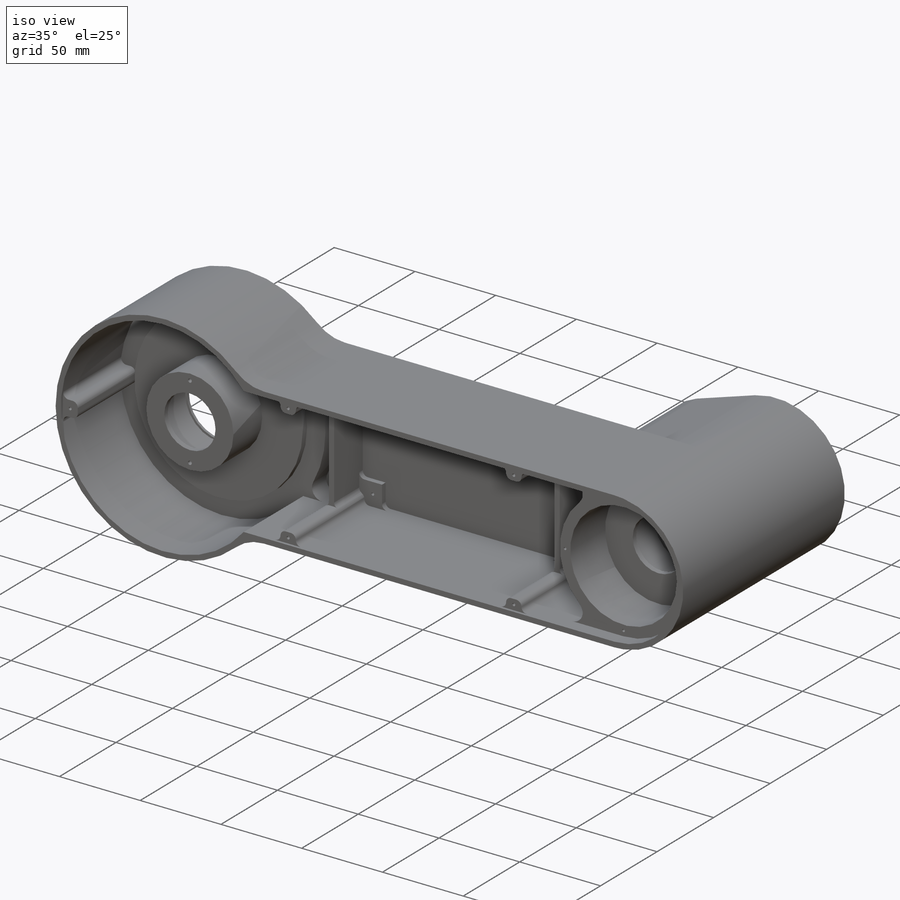
[diagram: iso view]
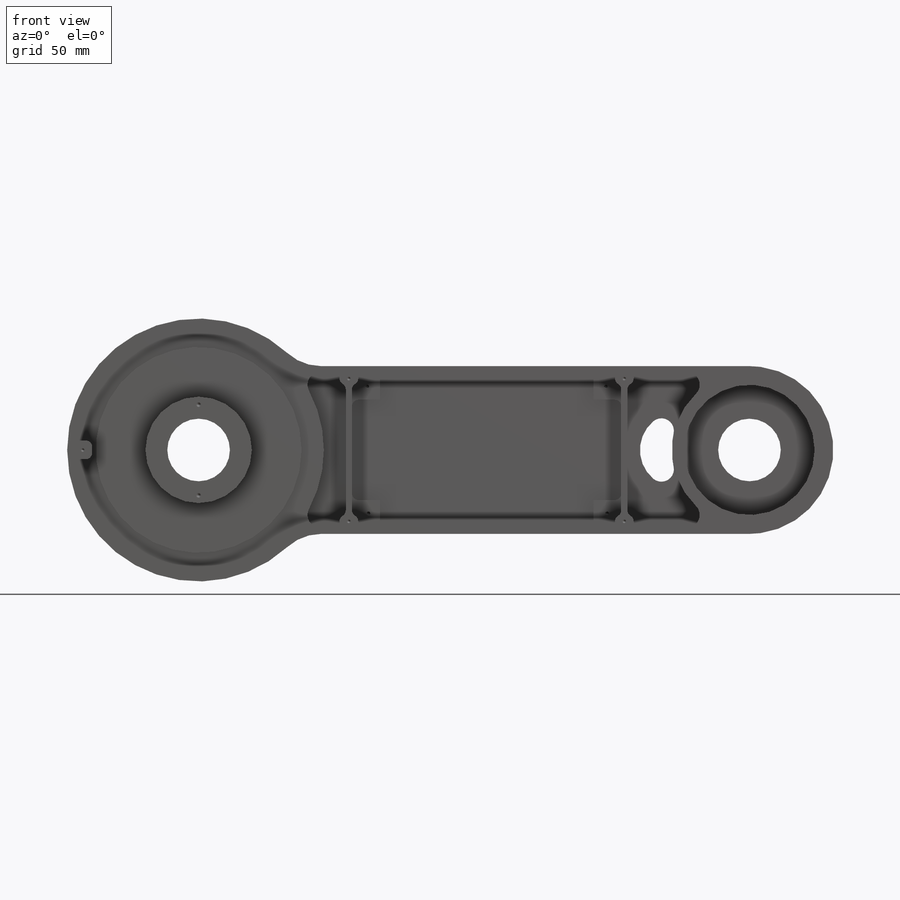
[diagram: front view]
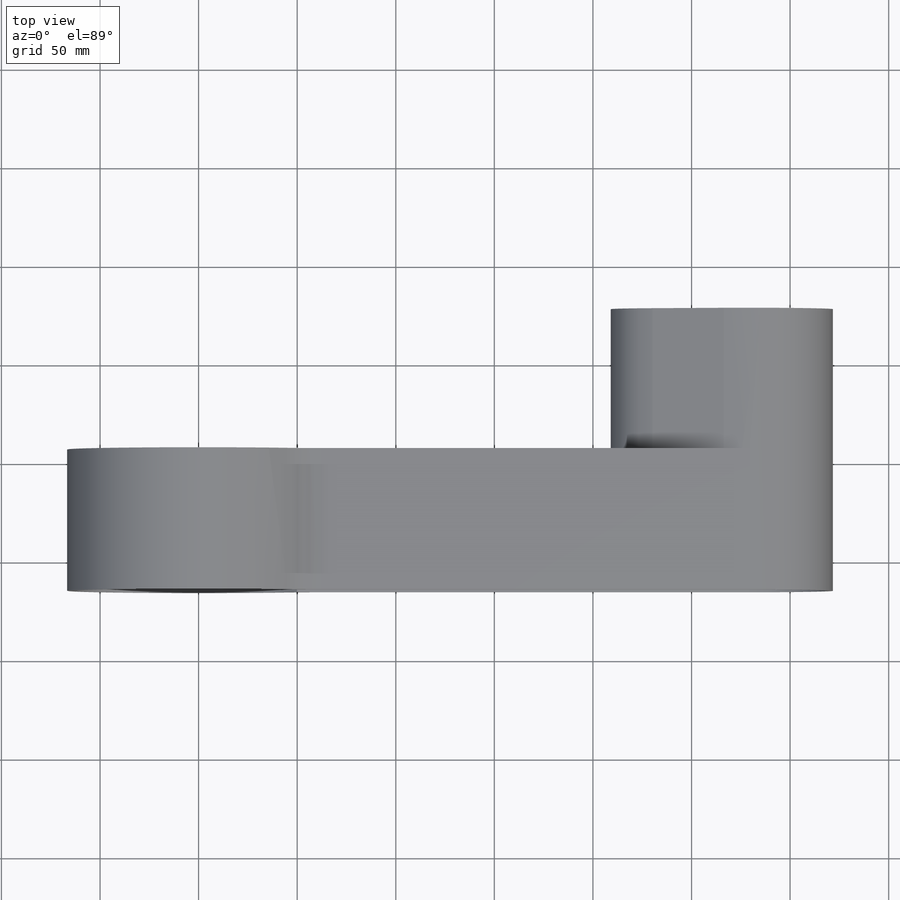
[diagram: top view]
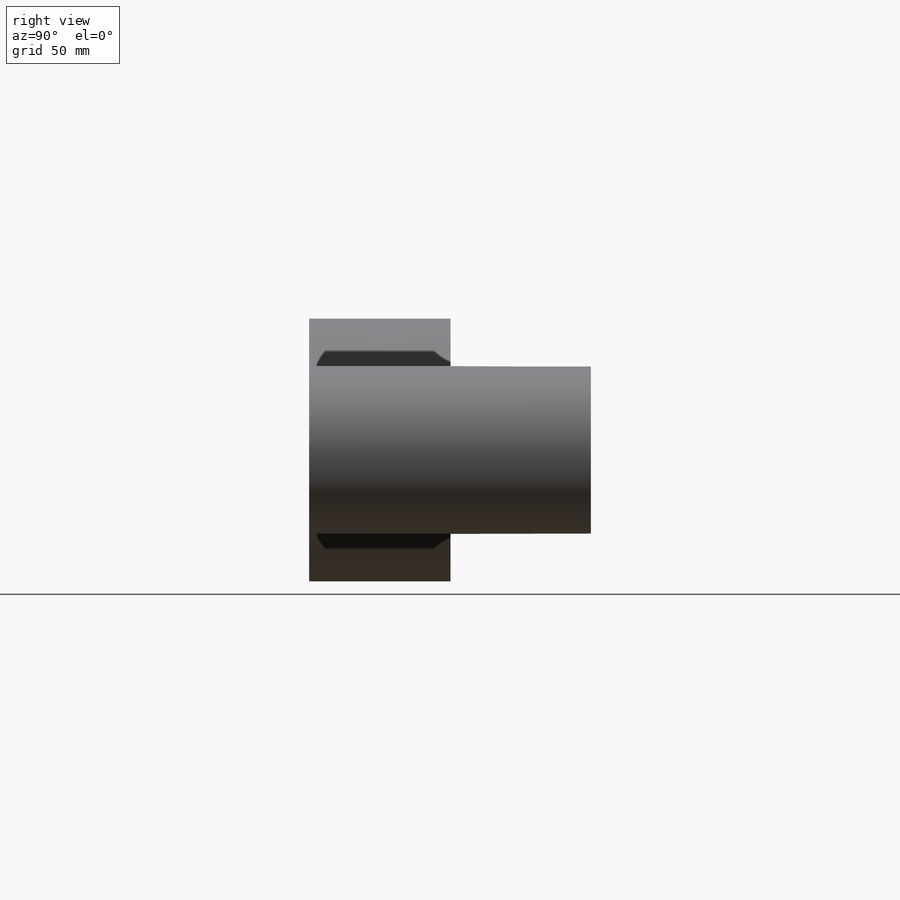
[diagram: right view]
SOLIDWORKS PART (.sldprt)
format: sldprt  version: not decoded by parser v0  size: 1,364,992 bytes
history: native  units: mm
features: sketch x32, thread x23, extrude x11, plane x10, fillet x9, hole x6, revolve x5, cut_extrude x4, material x1, cut_revolve x1 (+14 scaffold rows collapsed; 1 parser-record rows omitted)
feature tree (117):
  scaffold x14  (default folders/planes/origin — collapsed)
  material  "6061-T6 (SS)"
  sketch  "Sketch1"  dims[c1.D1=42.545mm c1.D4=63.5mm c1.D2=42.545mm c1.D5=~132.177172mm c1.D6=~39.216983mm c2.D2=279.4mm c2.D1=85.09mm c2.D3=3.175mm c2.D4=78.74mm c3.D1=279.4mm c3.D5=3.175mm c3.D6=3.175mm c3.D3=3.175mm]
  extrude  "Boss-Extrude1"  Depth=65.3415mm
  extrude  "Boss-Extrude2"  [1 undecoded]
  sketch  "Sketch1<2>"  dims[D1=6.35mm]
  plane  "Plane1"
  plane  "Plane2"
  sketch  "Sketch50"
  extrude  "Boss-Extrude14"  Depth=6.35mm
  sketch  "Sketch3"  dims[D1=120.0mm]
  cut_extrude  "Cut-Extrude1"  Depth=8mm
  sketch  "Sketch4"  dims[D1=98.02mm]
  cut_extrude  "Cut-Extrude2"  [1 undecoded]
  sketch  "Sketch51"  dims[c1.D1=~19.60499mm c1.D2=49.01mm c1.D3=1.5875mm c1.D4=1.5748mm c1.D5=1.5748mm c2.D2=49.01mm c2.D5=21.9075mm c2.D6=20.6375mm c2.D7=~13.266588mm c2.D4=1.5748mm c3.D7=22.225mm c3.D8=3.175mm c3.D9=15.875mm c3.D10=6.35mm c3.D11=3.175mm c3.D12=3.175mm c3.D13=6.35mm]
  revolve  "Revolve1"  Angle=360deg
  plane  "Plane3"
  plane  "Wall Plane"  Offset=3.175mm
  plane  "Height Plane"  Offset=146.05mm
  sketch  "Sketch5"  dims[c1.D1=76.2mm c1.D2=82.55mm c1.D3=85.09mm c1.D4=~70.258177mm c1.D7=~48.380237mm c2.D1=~8.985008mm c2.D3=42.545mm c2.D4=85.09mm c2.D5=38.1mm c3.D1=85.09mm c3.D2=85.09mm c3.D4=3.175mm c3.D5=38.1mm c3.D6=38.1mm c3.D7=3.175mm c4.D1=42.545mm c4.D2=42.545mm c4.D6=3.175mm]
  extrude  "Boss-Extrude3"  [1 undecoded]
  extrude  "Boss-Extrude4"  [1 undecoded]
  sketch  "Sketch5<2>"  dims[D1=3.175mm]
  plane  "Plane4"
  revolve  "Axis5"  [1 undecoded]
  sketch  "Sketch20"  dims[c1.D1=63.5mm c1.D2=76.2mm c2.D1=6.35mm]
  extrude  "Boss-Extrude9"  Depth=11.1125mm
  sketch  "Sketch49"  dims[D1=33.02mm D2=~41.92524mm D3=15.875mm D4=3.175mm D5=22.225mm D6=21.9075mm D7=20.6375mm D8=1.5748mm]
  cut_revolve  "Cut-Revolve1"  Angle=360deg
  plane  "Bearing Surface"
  parser-record x1  (decoder bookkeeping rows leaked as tree rows — omitted from the tree; the rows remain in map.json)
  revolve  "Axis1"  [1 undecoded]
  revolve  "Axis3"  [1 undecoded]
  revolve  "Axis4"  [1 undecoded]
  plane  "Plane7"  Offset=0mm
  sketch  "Sketch25"  dims[D1=1.5875mm D2=36.195mm D3=4.0]
  cut_extrude  "Cut-Extrude8"  Depth=12.7mm
  sketch  "Sketch27"  dims[D1=46.0248mm]
  hole  "#4-40 Tapped Hole1"  Diameter=2.2606mm Depth=8.255mm
  sketch  "Sketch29"
  sketch  "Sketch28"  dims[hole-wizard template sketch: 50 standard entries collapsed; hole parameters above]
  thread  "Hole Thread16"  Diameter=6.35mm  [1 undecoded]
  thread  "Hole Thread17"  Diameter=6.35mm  [1 undecoded]
  thread  "Hole Thread71"  Diameter=6.35mm  [1 undecoded]
  thread  "Hole Thread72"  Diameter=6.35mm  [1 undecoded]
  sketch  "Sketch30"  dims[D1=46.0248mm]
  hole  "#4-40 Tapped Hole2"  Diameter=2.2606mm Depth=8.255mm
  sketch  "Sketch32"
  sketch  "Sketch31"  dims[hole-wizard template sketch: 50 standard entries collapsed; hole parameters above]
  thread  "Hole Thread18"  Diameter=6.35mm  [1 undecoded]
  thread  "Hole Thread19"  Diameter=6.35mm  [1 undecoded]
  fillet  "Fillet3"  Radius=6.35mm
  sketch  "Sketch33"  dims[c1.D15=63.5mm c1.D16=63.5mm c1.D1=9.525mm c1.D2=6.35mm c1.D3=76.2mm c1.D4=44.45mm c1.D5=9.525mm c1.D6=6.35mm c1.D7=9.525mm c1.D8=9.525mm c1.D9=3.175mm c2.D4=63.5mm c2.D10=3.175mm c2.D11=3.175mm c2.D9=9.525mm c2.D12=6.35mm c2.D2=6.35mm c2.D13=3.175mm c2.D6=6.35mm c2.D14=3.175mm c2.D15=0.254mm c2.D16=0.0mm]
  extrude  "Boss-Extrude11"  Depth=1.5875mm
  extrude  "Boss-Extrude15"  [1 undecoded]
  sketch  "Sketch33<4>"  dims[D1=1.5875mm D19=6.35mm]
  extrude  "Boss-Extrude13"  [1 undecoded]
  sketch  "Sketch33<3>"  dims[D1=25.4mm]
  fillet  "Fillet4"  Radius=3.175mm
  fillet  "Fillet5"  Radius=3.175mm
  plane  "Plane8"
  sketch  "Sketch9"  dims[c1.D1=273.05mm c1.D2=25.4mm c1.D3=50.8mm c1.D4=117.1702mm c1.D5=25.4mm c2.D3=3.175mm c2.D6=32.1818mm c2.D7=3.175mm c2.D4=121.031mm c2.D8=6.35mm c2.D9=6.35mm c2.D1=273.05mm]
  extrude  "Boss-Extrude16"  Depth=3.175mm
  hole  "#2-56 Tapped Hole3"  Diameter=1.778mm Depth=12.7mm
  sketch  "Sketch37"
  sketch  "Sketch36"  dims[hole-wizard template sketch: 50 standard entries collapsed; hole parameters above]
  thread  "Hole Thread66"  Diameter=11.43mm  [1 undecoded]
  thread  "Hole Thread67"  Diameter=11.43mm  [1 undecoded]
  thread  "Hole Thread68"  Diameter=11.43mm  [1 undecoded]
  thread  "Hole Thread69"  Diameter=11.43mm  [1 undecoded]
  thread  "Hole Thread70"  Diameter=11.43mm  [1 undecoded]
  sketch  "Sketch38"  dims[c1.D1=~36.059952mm c1.D2=~7.958105mm c2.D1=38.1mm c2.D2=19.05mm c3.D1=19.05mm c3.D3=~11.265235mm c4.D3=180.0deg c4.D2=12.7mm]
  cut_extrude  "Cut-Extrude9"  [1 undecoded]
  fillet  "Fillet6"  Radius=6.35mm
  sketch  "Sketch39"  dims[D1=109.01mm]
  hole  "#8-32 Tapped Hole1"  Diameter=3.4544mm Depth=9.4625mm
  sketch  "Sketch41"
  sketch  "Sketch40"  dims[hole-wizard template sketch: 47 standard entries collapsed; hole parameters kept: c15.Tap Drill Depth=9.4625mm c15.D3=~14.816244mm c15.Drill Angle=118.0deg]
  thread  "Hole Thread73"  Diameter=6.2875mm  [1 undecoded]
  thread  "Hole Thread74"  Diameter=6.2875mm  [1 undecoded]
  thread  "Hole Thread75"  Diameter=6.2875mm  [1 undecoded]
  thread  "Hole Thread76"  Diameter=6.2875mm  [1 undecoded]
  sketch  "Sketch42"  dims[c1.D1=6.35mm c1.D2=6.35mm c1.D3=3.175mm c1.D4=6.35mm c1.D5=6.35mm c1.D6=25.4mm c1.D7=6.35mm c1.D8=6.35mm c1.D9=3.175mm c2.D6=25.4mm]
  extrude  "Boss-Extrude12"  Depth=1.5875mm
  fillet  "Fillet9"  Radius=3.175mm
  fillet  "Fillet10"  Radius=3.175mm
  plane  "Plane9"
  hole  "#2-56 Tapped Hole4"  Diameter=1.778mm Depth=7.874mm
  sketch  "Sketch46"
  sketch  "Sketch45"  dims[hole-wizard template sketch: 50 standard entries collapsed; hole parameters above]
  thread  "Hole Thread53"  Diameter=0mm  [1 undecoded]
  thread  "Hole Thread54"  Diameter=0mm  [1 undecoded]
  thread  "Hole Thread55"  Diameter=0mm  [1 undecoded]
  thread  "Hole Thread56"  Diameter=0mm  [1 undecoded]
  hole  "#2-56 Tapped Hole5"  Diameter=1.778mm Depth=6.35mm
  sketch  "Sketch48"
  sketch  "Sketch47"  dims[hole-wizard template sketch: 47 standard entries collapsed; hole parameters kept: c15.Tap Drill Depth=6.35mm c15.D3=~14.816244mm c15.Drill Angle=118.0deg]
  thread  "Hole Thread77"  Diameter=3.175mm  [1 undecoded]
  thread  "Hole Thread78"  Diameter=3.175mm  [1 undecoded]
  thread  "Hole Thread79"  Diameter=3.175mm  [1 undecoded]
  thread  "Hole Thread80"  Diameter=3.175mm  [1 undecoded]
  fillet  "Fillet11"  Radius=6.35mm
  fillet  "Fillet12"  Radius=25.4mm
  fillet  "Fillet13"  Radius=3.175mm
decode coverage: 73 of 91 modeling features carry decoded parameters
note: ~ marks probable driven/reference dimensions
note: 34 parameter values undecoded
summary: no parameter record found for 11 features; Diameter pulled from absorbed wizard sketch
note: suppression state not decoded; provenance and decode notes live in map.json
